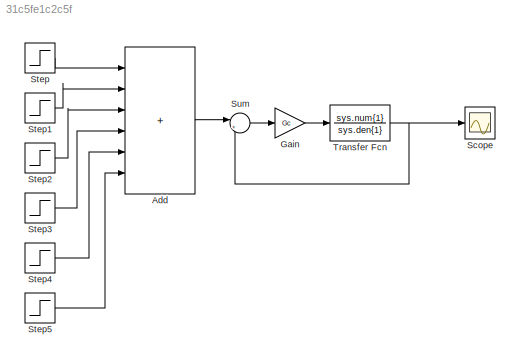
MODEL slx_31c5fe1c2c5f
KIND model
CONFIG AbsTol = auto
CONFIG EnableMultiTasking = off
CONFIG FixedStep = auto
CONFIG MaxStep = auto
CONFIG MinStep = auto
CONFIG RelTol = 1e-3
CONFIG SampleTimeConstraint = Unconstrained
CONFIG SolverName = VariableStepAuto
CONFIG StartTime = 0.0
CONFIG StopTime = 50
BLOCK [Sum] Add
  IconShape = rectangular
  Inputs = ++++++
  Ports = [6, 1]
BLOCK [Gain] Gain
  Gain = Gc
BLOCK [Scope] Scope
  Floating = off
  NumInputPorts = 1
  Ports = [1]
  ScopeSpecificationString = Simulink.scopes.TimeScopeBlockCfg('CurrentConfiguration', extmgr.ConfigurationSet(extmgr.Configuration('Core','General UI',true),extmgr.Configuration('Core','Source UI',true),extmgr.Configuration('Sources','WiredSimulink',true),extmgr.Configuration('Visuals','Time Domain',true,'SerializedDisplays',{struct('MinYLimReal','-2.35621','MaxYLimReal','21.20585','YLabelReal','','MinYLimMag','0.00000','Max...<+1691ch>
BLOCK [Step] Step
  After = pi
  SampleTime = 0
  Time = 0
BLOCK [Step] Step1
  After = pi
  SampleTime = 0
  Time = 8
BLOCK [Step] Step2
  After = pi
  SampleTime = 0
  Time = 16
BLOCK [Step] Step3
  After = pi
  SampleTime = 0
  Time = 24
BLOCK [Step] Step4
  After = pi
  SampleTime = 0
  Time = 32
BLOCK [Step] Step5
  After = pi
  SampleTime = 0
  Time = 40
BLOCK [Sum] Sum
  Inputs = |+-
  Ports = [2, 1]
BLOCK [TransferFcn] Transfer Fcn
  Denominator = sys.den{1}
  Numerator = sys.num{1}
LINE Add:1 -> Sum:1
LINE Gain:1 -> Transfer Fcn:1
LINE Step1:1 -> Add:2
LINE Step2:1 -> Add:3
LINE Step3:1 -> Add:4
LINE Step4:1 -> Add:5
LINE Step5:1 -> Add:6
LINE Step:1 -> Add:1
LINE Sum:1 -> Gain:1
NET Transfer Fcn:1 -> Scope:1, Sum:2
note: NET lines group one-source signal fan-out (src -> all destinations, sorted); 1:1 wires keep LINE
